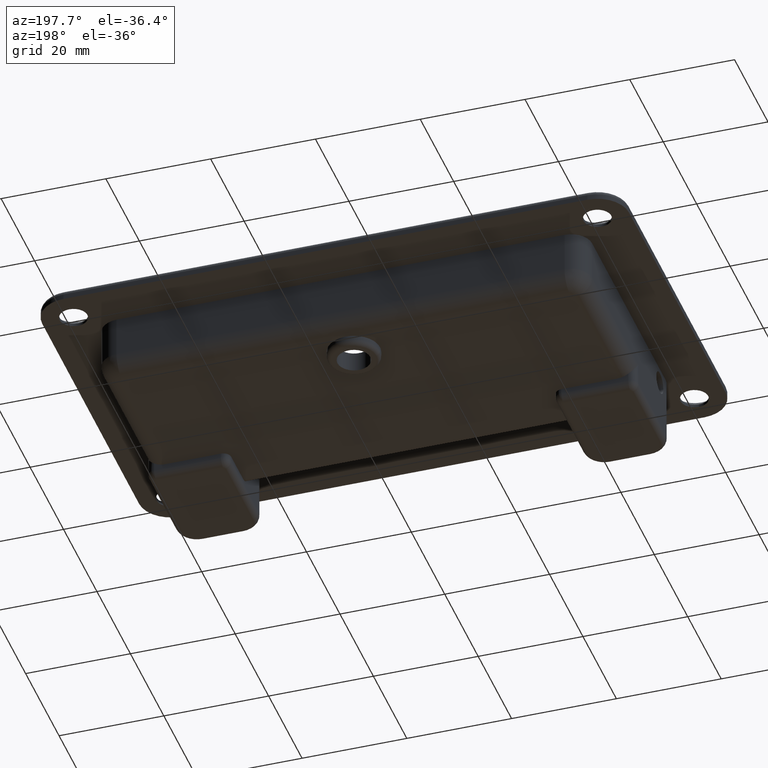
[diagram: clean part render]
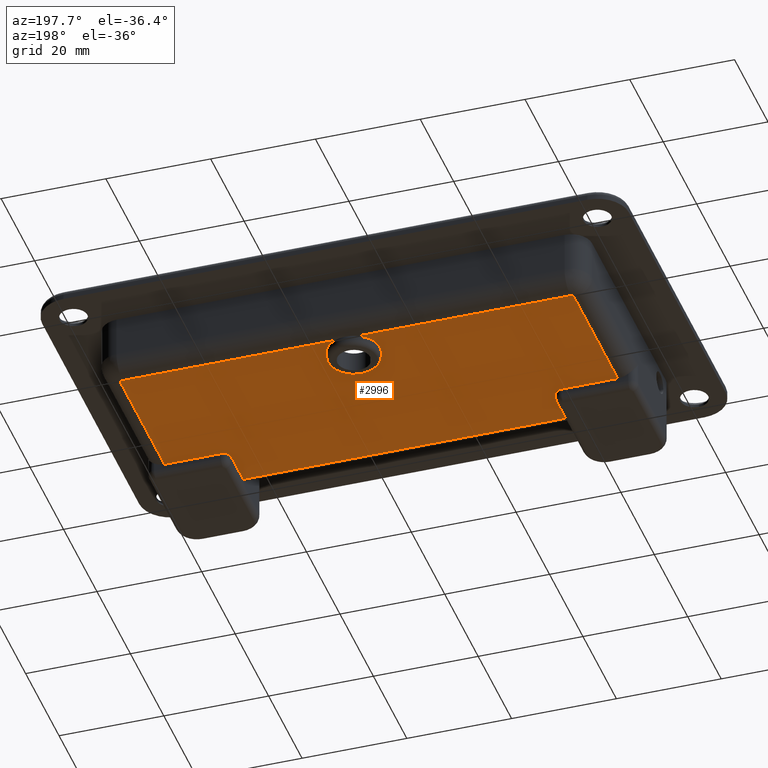
[diagram: same view with one face highlighted and labeled with its STEP entity id]
A machine part, auxiliary view. The second image highlights one B-rep face of the part: STEP entity #2996.
In plain terms, the highlighted planar face has unit normal (0, 0, -1).
Its self-contained STEP definition (entity closure, byte-faithful):
#26=ELLIPSE('',#3205,1.50022849206586,1.5);
#28=ELLIPSE('',#3233,1.50022849206586,1.5);
#205=LINE('',#8276,#395);
#223=LINE('',#8360,#413);
#280=LINE('',#8596,#470);
#281=LINE('',#8599,#471);
#282=LINE('',#8602,#472);
#283=LINE('',#8604,#473);
#284=LINE('',#8608,#474);
#285=LINE('',#8612,#475);
#286=LINE('',#8615,#476);
#395=VECTOR('',#3787,10.7499999999996);
#413=VECTOR('',#3871,7.23308845934209);
#470=VECTOR('',#4078,62.0000000000001);
#471=VECTOR('',#4083,7.23308845934209);
#472=VECTOR('',#4086,10.75);
#473=VECTOR('',#4087,26.2666830444216);
#474=VECTOR('',#4090,40.5705505280176);
#475=VECTOR('',#4093,40.5705505240567);
#476=VECTOR('',#4096,26.2666830483796);
#543=PLANE('',#3317);
#732=FACE_OUTER_BOUND('',#950,.T.);
#950=EDGE_LOOP('',(#2516,#2517,#2518,#2519,#2520,#2521,#2522,#2523,#2524,
#2525,#2526,#2527,#2528,#2529));
#1174=CIRCLE('',#3318,0.5);
#1175=CIRCLE('',#3319,5.);
#1176=CIRCLE('',#3320,0.5);
#1326=VERTEX_POINT('',#8269);
#1327=VERTEX_POINT('',#8270);
#1328=VERTEX_POINT('',#8275);
#1345=VERTEX_POINT('',#8339);
#1346=VERTEX_POINT('',#8340);
#1351=VERTEX_POINT('',#8359);
#1437=VERTEX_POINT('',#8595);
#1438=VERTEX_POINT('',#8601);
#1439=VERTEX_POINT('',#8603);
#1440=VERTEX_POINT('',#8605);
#1441=VERTEX_POINT('',#8607);
#1442=VERTEX_POINT('',#8609);
#1443=VERTEX_POINT('',#8611);
#1444=VERTEX_POINT('',#8613);
#1670=EDGE_CURVE('',#1326,#1327,#26,.F.);
#1673=EDGE_CURVE('',#1327,#1328,#205,.T.);
#1700=EDGE_CURVE('',#1345,#1346,#28,.F.);
#1710=EDGE_CURVE('',#1346,#1351,#223,.T.);
#1819=EDGE_CURVE('',#1437,#1351,#280,.T.);
#1821=EDGE_CURVE('',#1437,#1326,#281,.T.);
#1822=EDGE_CURVE('',#1438,#1345,#282,.T.);
#1823=EDGE_CURVE('',#1438,#1439,#283,.T.);
#1824=EDGE_CURVE('',#1439,#1440,#1174,.T.);
#1825=EDGE_CURVE('',#1440,#1441,#284,.T.);
#1826=EDGE_CURVE('',#1442,#1441,#1175,.T.);
#1827=EDGE_CURVE('',#1442,#1443,#285,.T.);
#1828=EDGE_CURVE('',#1443,#1444,#1176,.T.);
#1829=EDGE_CURVE('',#1444,#1328,#286,.T.);
#2516=ORIENTED_EDGE('',*,*,#1822,.F.);
#2517=ORIENTED_EDGE('',*,*,#1823,.T.);
#2518=ORIENTED_EDGE('',*,*,#1824,.T.);
#2519=ORIENTED_EDGE('',*,*,#1825,.T.);
#2520=ORIENTED_EDGE('',*,*,#1826,.F.);
#2521=ORIENTED_EDGE('',*,*,#1827,.T.);
#2522=ORIENTED_EDGE('',*,*,#1828,.T.);
#2523=ORIENTED_EDGE('',*,*,#1829,.T.);
#2524=ORIENTED_EDGE('',*,*,#1673,.F.);
#2525=ORIENTED_EDGE('',*,*,#1670,.F.);
#2526=ORIENTED_EDGE('',*,*,#1821,.F.);
#2527=ORIENTED_EDGE('',*,*,#1819,.T.);
#2528=ORIENTED_EDGE('',*,*,#1710,.F.);
#2529=ORIENTED_EDGE('',*,*,#1700,.F.);
#2996=ADVANCED_FACE('',(#732),#543,.T.);
#3205=AXIS2_PLACEMENT_3D('',#8271,#3781,#3782);
#3233=AXIS2_PLACEMENT_3D('',#8341,#3850,#3851);
#3317=AXIS2_PLACEMENT_3D('',#8600,#4084,#4085);
#3318=AXIS2_PLACEMENT_3D('',#8606,#4088,#4089);
#3319=AXIS2_PLACEMENT_3D('',#8610,#4091,#4092);
#3320=AXIS2_PLACEMENT_3D('',#8614,#4094,#4095);
#3781=DIRECTION('center_axis',(0.,0.,1.));
#3782=DIRECTION('ref_axis',(1.97034572979881E-14,1.,0.));
#3787=DIRECTION('',(1.,0.,0.));
#3850=DIRECTION('center_axis',(0.,0.,1.));
#3851=DIRECTION('ref_axis',(4.16270224605383E-15,1.,0.));
#3871=DIRECTION('',(0.,-1.,0.));
#4078=DIRECTION('',(-1.,0.,0.));
#4083=DIRECTION('',(3.248195363475E-14,1.,0.));
#4084=DIRECTION('center_axis',(0.,0.,-1.));
#4085=DIRECTION('ref_axis',(1.,0.,0.));
#4086=DIRECTION('',(1.,0.,0.));
#4087=DIRECTION('',(0.,1.,0.));
#4088=DIRECTION('center_axis',(0.,0.,-1.));
#4089=DIRECTION('ref_axis',(-1.,0.,0.));
#4090=DIRECTION('',(1.,0.,0.));
#4091=DIRECTION('center_axis',(0.,0.,-1.));
#4092=DIRECTION('ref_axis',(-1.,0.,0.));
#4093=DIRECTION('',(1.,0.,0.));
#4094=DIRECTION('center_axis',(0.,0.,-1.));
#4095=DIRECTION('ref_axis',(-1.,0.,0.));
#4096=DIRECTION('',(0.,-1.,0.));
#8269=CARTESIAN_POINT('',(86.0000000000002,-73.7669115406579,-68.3));
#8270=CARTESIAN_POINT('',(87.5000000000002,-72.2666830485921,-68.3));
#8271=CARTESIAN_POINT('Origin',(87.5000000000002,-73.7669115406579,-68.3));
#8275=CARTESIAN_POINT('',(98.2499999999998,-72.2666830485921,-68.3));
#8276=CARTESIAN_POINT('',(140.,-72.2666830485921,-68.3));
#8339=CARTESIAN_POINT('',(22.4999999999998,-72.2666830485921,-68.3));
#8340=CARTESIAN_POINT('',(23.9999999999998,-73.7669115406579,-68.3));
#8341=CARTESIAN_POINT('Origin',(22.4999999999998,-73.7669115406579,-68.3));
#8359=CARTESIAN_POINT('',(23.9999999999998,-81.,-68.3));
#8360=CARTESIAN_POINT('',(23.9999999999998,-90.,-68.3));
#8595=CARTESIAN_POINT('',(85.9999999999999,-81.,-68.3));
#8596=CARTESIAN_POINT('',(85.9999999999999,-81.,-68.3));
#8599=CARTESIAN_POINT('',(85.9999999999999,-83.,-68.3));
#8600=CARTESIAN_POINT('Origin',(140.,-42.,-68.3));
#8601=CARTESIAN_POINT('',(11.7499999999998,-72.2666830485921,-68.3));
#8602=CARTESIAN_POINT('',(140.,-72.2666830485921,-68.3));
#8603=CARTESIAN_POINT('',(11.7499999999998,-46.0000000041705,-68.3));
#8604=CARTESIAN_POINT('',(11.7499999999998,-46.0000000060431,-68.3));
#8605=CARTESIAN_POINT('',(12.2500000002119,-45.5,-68.3));
#8606=CARTESIAN_POINT('Origin',(12.2499999999998,-46.,-68.3));
#8607=CARTESIAN_POINT('',(52.8205505282295,-45.5,-68.3));
#8608=CARTESIAN_POINT('',(140.,-45.5,-68.3));
#8609=CARTESIAN_POINT('',(57.1794494717702,-45.5,-68.3));
#8610=CARTESIAN_POINT('Origin',(54.9999999999999,-50.,-68.3));
#8611=CARTESIAN_POINT('',(97.7499999958269,-45.5,-68.3));
#8612=CARTESIAN_POINT('',(140.,-45.5,-68.3));
#8613=CARTESIAN_POINT('',(98.2499999999998,-46.0000000002125,-68.3));
#8614=CARTESIAN_POINT('Origin',(97.7499999999998,-46.,-68.3));
#8615=CARTESIAN_POINT('',(98.2499999999998,-72.2666830485921,-68.3));